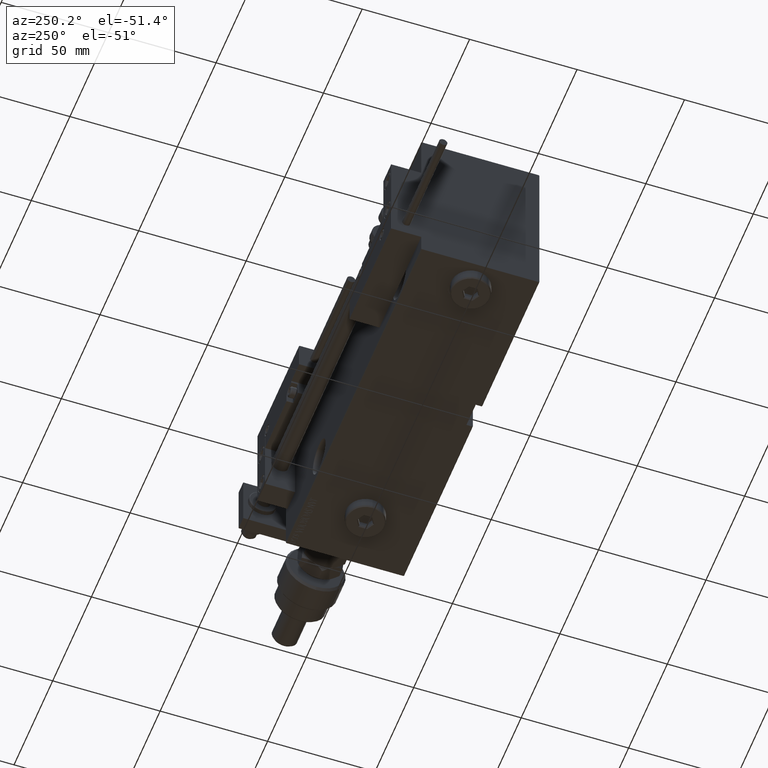
[diagram: clean part render]
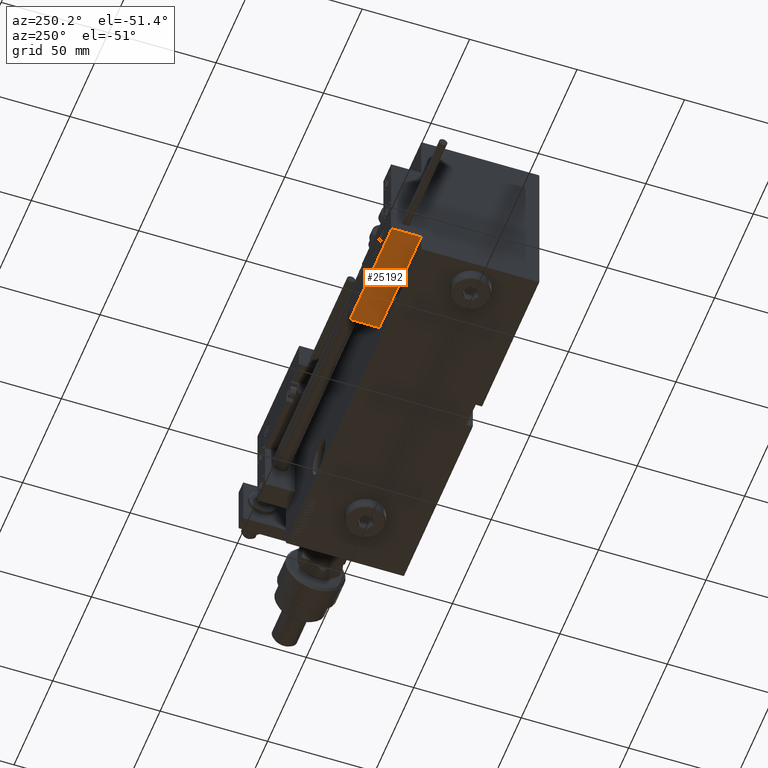
[diagram: same view with one face highlighted and labeled with its STEP entity id]
A machine part, auxiliary view. The second image highlights one B-rep face of the part: STEP entity #25192.
In plain terms, the highlighted planar face has unit normal (-0, -0, 1).
Its self-contained STEP definition (entity closure, byte-faithful):
#7382 = CARTESIAN_POINT ( 'NONE',  ( 27.00000000000006395, 20.00000000000001776, 14.00000000000000000 ) ) ;
#8584 = CARTESIAN_POINT ( 'NONE',  ( 27.00000000000006395, 20.00000000000001776, 13.70000000000000107 ) ) ;
#10545 = CARTESIAN_POINT ( 'NONE',  ( 27.00000000000006395, 20.00000000000001776, 0.000000000000000000 ) ) ;
#11717 = VECTOR ( 'NONE', #43904, 1000.000000000000000 ) ;
#11997 = DIRECTION ( 'NONE',  ( 1.000000000000000000, -6.424901762877063495E-17, 0.000000000000000000 ) ) ;
#15711 = LINE ( 'NONE', #53407, #11717 ) ;
#19229 = LINE ( 'NONE', #44668, #53281 ) ;
#19235 = VERTEX_POINT ( 'NONE', #24167 ) ;
#19969 = CARTESIAN_POINT ( 'NONE',  ( -26.99999999999993605, 20.00000000000002132, 0.000000000000000000 ) ) ;
#20973 = LINE ( 'NONE', #33564, #24685 ) ;
#21680 = CARTESIAN_POINT ( 'NONE',  ( 27.00000000000006395, 20.00000000000001776, 0.000000000000000000 ) ) ;
#24167 = CARTESIAN_POINT ( 'NONE',  ( -26.99999999999993605, 20.00000000000002132, 13.70000000000000107 ) ) ;
#24685 = VECTOR ( 'NONE', #28908, 1000.000000000000000 ) ;
#25192 = ADVANCED_FACE ( 'NONE', ( #27901 ), #44589, .F. ) ;
#25633 = EDGE_LOOP ( 'NONE', ( #25672, #28313, #34085, #43550 ) ) ;
#25672 = ORIENTED_EDGE ( 'NONE', *, *, #42107, .F. ) ;
#26104 = EDGE_CURVE ( 'NONE', #40640, #42442, #38936, .T. ) ;
#27901 = FACE_OUTER_BOUND ( 'NONE', #25633, .T. ) ;
#28313 = ORIENTED_EDGE ( 'NONE', *, *, #46815, .T. ) ;
#28908 = DIRECTION ( 'NONE',  ( 1.000000000000000000, -6.424901762877063495E-17, -0.000000000000000000 ) ) ;
#29929 = VECTOR ( 'NONE', #39221, 1000.000000000000000 ) ;
#31810 = DIRECTION ( 'NONE',  ( -0.000000000000000000, -0.000000000000000000, -1.000000000000000000 ) ) ;
#32780 = DIRECTION ( 'NONE',  ( -6.424901762877063495E-17, -1.000000000000000000, 0.000000000000000000 ) ) ;
#33564 = CARTESIAN_POINT ( 'NONE',  ( 27.00000000000006395, 20.00000000000001776, 13.70000000000000107 ) ) ;
#34085 = ORIENTED_EDGE ( 'NONE', *, *, #53230, .T. ) ;
#38936 = LINE ( 'NONE', #21680, #29929 ) ;
#39221 = DIRECTION ( 'NONE',  ( -1.000000000000000000, 6.424901762877062263E-17, 0.000000000000000000 ) ) ;
#40640 = VERTEX_POINT ( 'NONE', #10545 ) ;
#40891 = VERTEX_POINT ( 'NONE', #8584 ) ;
#42107 = EDGE_CURVE ( 'NONE', #19235, #42442, #19229, .T. ) ;
#42442 = VERTEX_POINT ( 'NONE', #19969 ) ;
#43550 = ORIENTED_EDGE ( 'NONE', *, *, #26104, .T. ) ;
#43904 = DIRECTION ( 'NONE',  ( -0.000000000000000000, -0.000000000000000000, -1.000000000000000000 ) ) ;
#44589 = PLANE ( 'NONE',  #50852 ) ;
#44668 = CARTESIAN_POINT ( 'NONE',  ( -26.99999999999993605, 20.00000000000002132, 14.00000000000000000 ) ) ;
#46815 = EDGE_CURVE ( 'NONE', #19235, #40891, #20973, .T. ) ;
#50852 = AXIS2_PLACEMENT_3D ( 'NONE', #7382, #32780, #11997 ) ;
#53230 = EDGE_CURVE ( 'NONE', #40891, #40640, #15711, .T. ) ;
#53281 = VECTOR ( 'NONE', #31810, 1000.000000000000000 ) ;
#53407 = CARTESIAN_POINT ( 'NONE',  ( 27.00000000000006395, 20.00000000000001776, 14.00000000000000000 ) ) ;